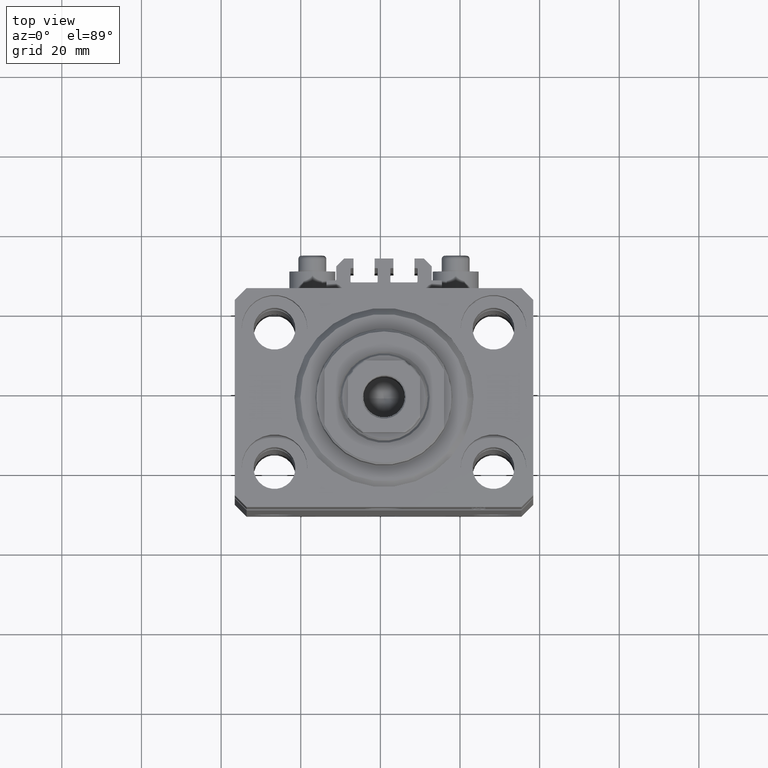
[diagram: clean part render]
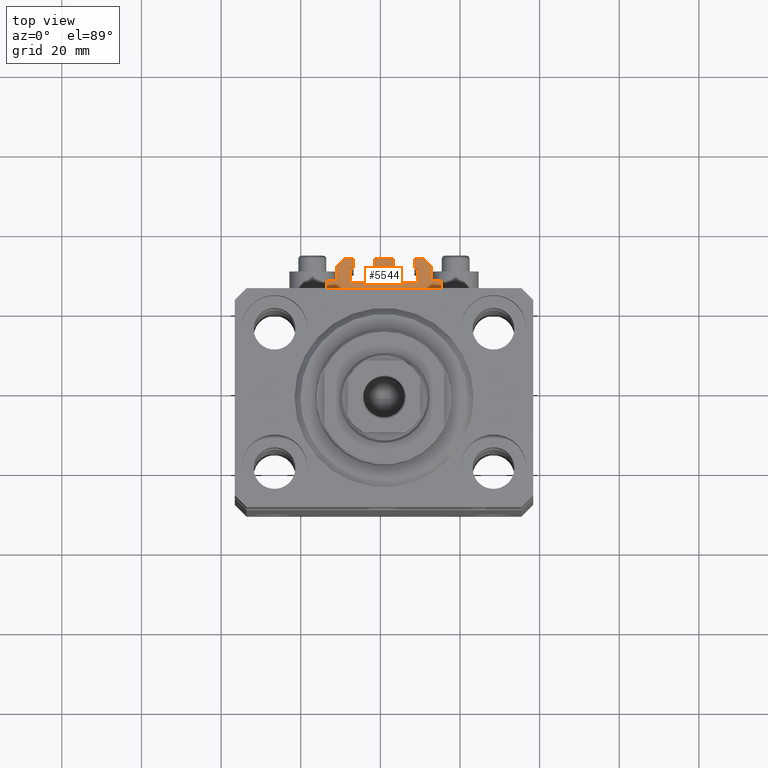
[diagram: same view with one face highlighted and labeled with its STEP entity id]
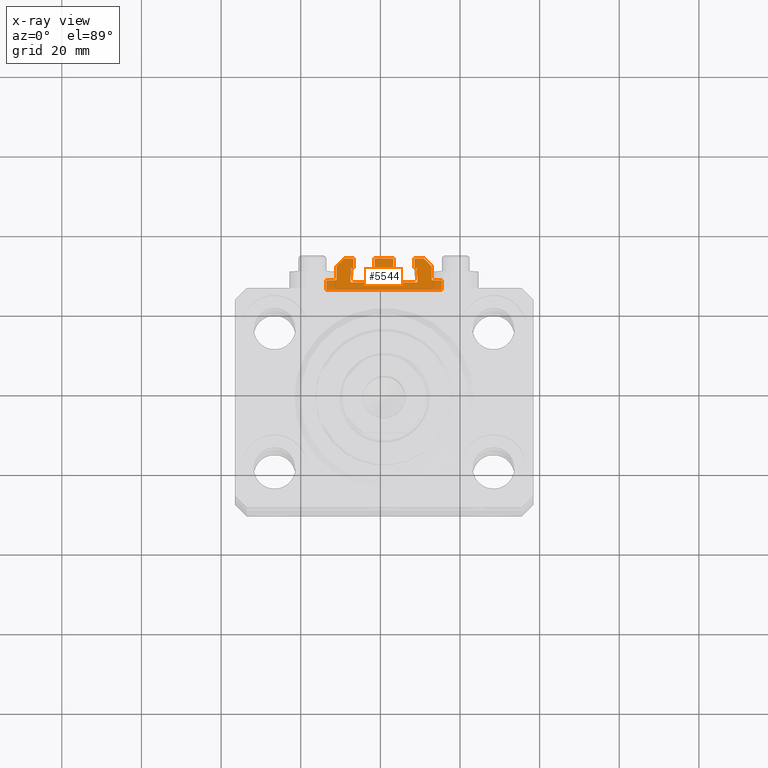
[diagram: x-ray of the same camera — body ghosted, the highlighted face saturated]
A machine part, top view. The second image highlights one B-rep face of the part: STEP entity #5544.
The next image is the same camera in x-ray: the body ghosted, the highlighted face saturated — about 12% of this face is hidden behind the body in this view.
In plain terms, the highlighted planar face has unit normal (0, 0, 1).
Its self-contained STEP definition (entity closure, byte-faithful):
#117 = CARTESIAN_POINT ( 'NONE',  ( -8.199999999999997513, 33.09999999999998721, -33.00000000000000000 ) ) ;
#260 = DIRECTION ( 'NONE',  ( -1.000000000000000000, 1.508455196501571429E-15, 0.000000000000000000 ) ) ;
#575 = CARTESIAN_POINT ( 'NONE',  ( -7.650000000000000355, 35.50000000000000000, -33.00000000000000000 ) ) ;
#585 = VECTOR ( 'NONE', #45507, 1000.000000000000000 ) ;
#744 = VECTOR ( 'NONE', #13806, 1000.000000000000000 ) ;
#787 = LINE ( 'NONE', #44879, #30733 ) ;
#840 = ORIENTED_EDGE ( 'NONE', *, *, #24301, .T. ) ;
#1160 = LINE ( 'NONE', #15941, #585 ) ;
#1259 = VECTOR ( 'NONE', #39230, 1000.000000000000000 ) ;
#1275 = CARTESIAN_POINT ( 'NONE',  ( -8.199999999999997513, 32.89999999999999147, -33.00000000000000000 ) ) ;
#1472 = VECTOR ( 'NONE', #19593, 1000.000000000000000 ) ;
#2055 = DIRECTION ( 'NONE',  ( 1.000000000000000000, 0.000000000000000000, 0.000000000000000000 ) ) ;
#2182 = ORIENTED_EDGE ( 'NONE', *, *, #19742, .F. ) ;
#2205 = LINE ( 'NONE', #12791, #1472 ) ;
#2235 = ORIENTED_EDGE ( 'NONE', *, *, #28502, .T. ) ;
#2301 = CARTESIAN_POINT ( 'NONE',  ( -8.399999999999996803, 29.69999999999999929, -33.00000000000000000 ) ) ;
#2357 = CARTESIAN_POINT ( 'NONE',  ( -1.600000000000000533, 32.90000000000001279, -33.00000000000000000 ) ) ;
#2511 = CARTESIAN_POINT ( 'NONE',  ( -12.20000000000000107, 29.99999999999998934, -33.00000000000000000 ) ) ;
#2898 = CARTESIAN_POINT ( 'NONE',  ( 8.400000000000000355, 29.70000000000000284, -33.00000000000000000 ) ) ;
#3105 = DIRECTION ( 'NONE',  ( 1.000000000000000000, 0.000000000000000000, 0.000000000000000000 ) ) ;
#3123 = CARTESIAN_POINT ( 'NONE',  ( 2.349999999999999645, 33.10000000000000853, -33.00000000000000000 ) ) ;
#3131 = CARTESIAN_POINT ( 'NONE',  ( 8.199999999999999289, 29.70000000000000284, -33.00000000000000000 ) ) ;
#3533 = CARTESIAN_POINT ( 'NONE',  ( -8.399999999999996803, 29.69999999999999929, -33.00000000000000000 ) ) ;
#3578 = CARTESIAN_POINT ( 'NONE',  ( -1.599999999999997868, 32.90000000000001279, -33.00000000000000000 ) ) ;
#3756 = VERTEX_POINT ( 'NONE', #8532 ) ;
#4057 = EDGE_CURVE ( 'NONE', #10342, #18408, #36883, .T. ) ;
#4443 = LINE ( 'NONE', #41035, #30674 ) ;
#4767 = EDGE_CURVE ( 'NONE', #3756, #34322, #26702, .T. ) ;
#4862 = DIRECTION ( 'NONE',  ( 0.000000000000000000, -1.000000000000000000, 0.000000000000000000 ) ) ;
#4902 = VERTEX_POINT ( 'NONE', #46577 ) ;
#5431 = AXIS2_PLACEMENT_3D ( 'NONE', #8521, #16009, #26928 ) ;
#5466 = EDGE_CURVE ( 'NONE', #12458, #47864, #9654, .T. ) ;
#5544 = ADVANCED_FACE ( 'NONE', ( #35824 ), #43084, .T. ) ;
#5845 = EDGE_CURVE ( 'NONE', #24451, #29112, #38929, .T. ) ;
#5973 = AXIS2_PLACEMENT_3D ( 'NONE', #1275, #41748, #38353 ) ;
#6147 = AXIS2_PLACEMENT_3D ( 'NONE', #37899, #12215, #45151 ) ;
#6232 = DIRECTION ( 'NONE',  ( -6.776263578034378061E-17, -1.000000000000000000, 0.000000000000000000 ) ) ;
#6244 = EDGE_CURVE ( 'NONE', #34628, #36381, #14346, .T. ) ;
#6276 = DIRECTION ( 'NONE',  ( 0.000000000000000000, 1.000000000000000000, 0.000000000000000000 ) ) ;
#6328 = CIRCLE ( 'NONE', #36495, 0.2000000000000031197 ) ;
#6609 = CARTESIAN_POINT ( 'NONE',  ( 12.00000000000000178, 30.20000000000002061, -33.00000000000000000 ) ) ;
#6828 = ORIENTED_EDGE ( 'NONE', *, *, #36456, .T. ) ;
#6946 = AXIS2_PLACEMENT_3D ( 'NONE', #28469, #39606, #2055 ) ;
#7175 = ORIENTED_EDGE ( 'NONE', *, *, #20879, .T. ) ;
#7270 = CARTESIAN_POINT ( 'NONE',  ( 14.49999999999999645, 27.50000000000000355, -33.00000000000000000 ) ) ;
#7559 = EDGE_CURVE ( 'NONE', #24451, #30896, #46867, .T. ) ;
#7672 = VECTOR ( 'NONE', #8911, 1000.000000000000000 ) ;
#7903 = DIRECTION ( 'NONE',  ( 1.000000000000000000, 0.000000000000000000, 0.000000000000000000 ) ) ;
#8106 = CARTESIAN_POINT ( 'NONE',  ( -1.800000000000000933, 29.69999999999999929, -33.00000000000000000 ) ) ;
#8177 = DIRECTION ( 'NONE',  ( -0.7071067811865474617, 0.7071067811865474617, 0.000000000000000000 ) ) ;
#8265 = ORIENTED_EDGE ( 'NONE', *, *, #43704, .F. ) ;
#8279 = VERTEX_POINT ( 'NONE', #7270 ) ;
#8521 = CARTESIAN_POINT ( 'NONE',  ( -12.20000000000000107, 30.19999999999999218, -33.00000000000000000 ) ) ;
#8532 = CARTESIAN_POINT ( 'NONE',  ( -1.800000000000000933, 29.50000000000000355, -33.00000000000000000 ) ) ;
#8540 = CIRCLE ( 'NONE', #5431, 0.2000000000000005107 ) ;
#8596 = ORIENTED_EDGE ( 'NONE', *, *, #43038, .T. ) ;
#8911 = DIRECTION ( 'NONE',  ( 0.000000000000000000, 1.000000000000000000, 0.000000000000000000 ) ) ;
#8970 = LINE ( 'NONE', #12611, #20810 ) ;
#9234 = VECTOR ( 'NONE', #24834, 1000.000000000000000 ) ;
#9654 = LINE ( 'NONE', #3123, #17416 ) ;
#10155 = VERTEX_POINT ( 'NONE', #18364 ) ;
#10206 = VERTEX_POINT ( 'NONE', #22970 ) ;
#10275 = CARTESIAN_POINT ( 'NONE',  ( -12.00000000000000000, 33.49999999999998579, -33.00000000000000000 ) ) ;
#10333 = LINE ( 'NONE', #2357, #15965 ) ;
#10342 = VERTEX_POINT ( 'NONE', #27787 ) ;
#10758 = LINE ( 'NONE', #10275, #33746 ) ;
#10782 = EDGE_CURVE ( 'NONE', #15866, #10206, #34653, .T. ) ;
#10867 = LINE ( 'NONE', #11100, #16145 ) ;
#11086 = EDGE_CURVE ( 'NONE', #22808, #24414, #37987, .T. ) ;
#11100 = CARTESIAN_POINT ( 'NONE',  ( 8.400000000000000355, 32.90000000000001990, -33.00000000000000000 ) ) ;
#11541 = CARTESIAN_POINT ( 'NONE',  ( 8.199999999999999289, 29.50000000000000711, -33.00000000000000000 ) ) ;
#11977 = EDGE_CURVE ( 'NONE', #19732, #36381, #24949, .T. ) ;
#12055 = CARTESIAN_POINT ( 'NONE',  ( 12.00000000000000000, 33.50000000000001421, -33.00000000000000000 ) ) ;
#12215 = DIRECTION ( 'NONE',  ( 0.000000000000000000, 0.000000000000000000, 1.000000000000000000 ) ) ;
#12222 = ORIENTED_EDGE ( 'NONE', *, *, #23487, .F. ) ;
#12254 = DIRECTION ( 'NONE',  ( 0.000000000000000000, 0.000000000000000000, 1.000000000000000000 ) ) ;
#12346 = CIRCLE ( 'NONE', #6946, 0.1999999999999987899 ) ;
#12458 = VERTEX_POINT ( 'NONE', #22923 ) ;
#12480 = EDGE_CURVE ( 'NONE', #28280, #29112, #38458, .T. ) ;
#12530 = CARTESIAN_POINT ( 'NONE',  ( -1.800000000000000933, 32.90000000000001279, -33.00000000000000000 ) ) ;
#12611 = CARTESIAN_POINT ( 'NONE',  ( -14.50000000000000000, 29.99999999999999289, -33.00000000000000000 ) ) ;
#12791 = CARTESIAN_POINT ( 'NONE',  ( -14.50000000000000000, 27.50000000000000355, -33.00000000000000000 ) ) ;
#12918 = VERTEX_POINT ( 'NONE', #34036 ) ;
#13025 = VERTEX_POINT ( 'NONE', #23139 ) ;
#13278 = DIRECTION ( 'NONE',  ( 0.000000000000000000, 0.000000000000000000, 1.000000000000000000 ) ) ;
#13416 = ORIENTED_EDGE ( 'NONE', *, *, #35933, .T. ) ;
#13686 = DIRECTION ( 'NONE',  ( -1.000000000000000000, -1.084202172485504828E-15, 0.000000000000000000 ) ) ;
#13710 = ORIENTED_EDGE ( 'NONE', *, *, #7559, .F. ) ;
#13806 = DIRECTION ( 'NONE',  ( 1.000000000000000000, -1.261617073437681085E-14, 0.000000000000000000 ) ) ;
#14252 = CARTESIAN_POINT ( 'NONE',  ( 12.20000000000000107, 30.20000000000002061, -33.00000000000000000 ) ) ;
#14267 = LINE ( 'NONE', #47443, #43282 ) ;
#14346 = CIRCLE ( 'NONE', #41419, 0.1999999999999970690 ) ;
#14390 = CARTESIAN_POINT ( 'NONE',  ( 14.49999999999999645, 30.00000000000002487, -33.00000000000000000 ) ) ;
#14570 = ORIENTED_EDGE ( 'NONE', *, *, #31730, .T. ) ;
#14603 = VERTEX_POINT ( 'NONE', #43576 ) ;
#14652 = VECTOR ( 'NONE', #13686, 1000.000000000000000 ) ;
#14862 = CARTESIAN_POINT ( 'NONE',  ( 8.200000000000001066, 33.10000000000000853, -33.00000000000000000 ) ) ;
#15127 = CIRCLE ( 'NONE', #42212, 0.1999999999999987899 ) ;
#15341 = ORIENTED_EDGE ( 'NONE', *, *, #20997, .T. ) ;
#15866 = VERTEX_POINT ( 'NONE', #31736 ) ;
#15941 = CARTESIAN_POINT ( 'NONE',  ( -8.199999999999997513, 33.09999999999998721, -33.00000000000000000 ) ) ;
#15965 = VECTOR ( 'NONE', #6232, 1000.000000000000000 ) ;
#16009 = DIRECTION ( 'NONE',  ( 0.000000000000000000, 0.000000000000000000, 1.000000000000000000 ) ) ;
#16014 = EDGE_CURVE ( 'NONE', #34628, #39025, #10867, .T. ) ;
#16145 = VECTOR ( 'NONE', #18140, 1000.000000000000000 ) ;
#16323 = ORIENTED_EDGE ( 'NONE', *, *, #18997, .T. ) ;
#16399 = DIRECTION ( 'NONE',  ( 0.000000000000000000, 0.000000000000000000, 1.000000000000000000 ) ) ;
#16411 = ORIENTED_EDGE ( 'NONE', *, *, #18111, .T. ) ;
#16726 = VECTOR ( 'NONE', #38045, 1000.000000000000227 ) ;
#16768 = ORIENTED_EDGE ( 'NONE', *, *, #11977, .T. ) ;
#17026 = ORIENTED_EDGE ( 'NONE', *, *, #38690, .F. ) ;
#17229 = ORIENTED_EDGE ( 'NONE', *, *, #36332, .T. ) ;
#17242 = ORIENTED_EDGE ( 'NONE', *, *, #4057, .T. ) ;
#17416 = VECTOR ( 'NONE', #6276, 1000.000000000000000 ) ;
#17627 = CARTESIAN_POINT ( 'NONE',  ( 1.599999999999999645, 29.69999999999999929, -33.00000000000000000 ) ) ;
#17659 = DIRECTION ( 'NONE',  ( 0.000000000000000000, 0.000000000000000000, 1.000000000000000000 ) ) ;
#17733 = ORIENTED_EDGE ( 'NONE', *, *, #5466, .T. ) ;
#17956 = VECTOR ( 'NONE', #45812, 1000.000000000000000 ) ;
#18111 = EDGE_CURVE ( 'NONE', #28760, #30896, #45919, .T. ) ;
#18140 = DIRECTION ( 'NONE',  ( -5.421010862427496532E-16, -1.000000000000000000, 0.000000000000000000 ) ) ;
#18190 = ORIENTED_EDGE ( 'NONE', *, *, #4767, .F. ) ;
#18233 = DIRECTION ( 'NONE',  ( 0.000000000000000000, 1.000000000000000000, 0.000000000000000000 ) ) ;
#18364 = CARTESIAN_POINT ( 'NONE',  ( -14.50000000000000000, 29.99999999999999289, -33.00000000000000000 ) ) ;
#18368 = EDGE_CURVE ( 'NONE', #39775, #45149, #19296, .T. ) ;
#18408 = VERTEX_POINT ( 'NONE', #575 ) ;
#18538 = DIRECTION ( 'NONE',  ( 1.000000000000000000, 0.000000000000000000, 0.000000000000000000 ) ) ;
#18620 = DIRECTION ( 'NONE',  ( -1.000000000000000000, 0.000000000000000000, 0.000000000000000000 ) ) ;
#18997 = EDGE_CURVE ( 'NONE', #28280, #12458, #28831, .T. ) ;
#19152 = VECTOR ( 'NONE', #30259, 1000.000000000000000 ) ;
#19229 = DIRECTION ( 'NONE',  ( -1.000000000000000000, 0.000000000000000000, 0.000000000000000000 ) ) ;
#19260 = DIRECTION ( 'NONE',  ( 1.000000000000000000, 0.000000000000000000, 0.000000000000000000 ) ) ;
#19296 = CIRCLE ( 'NONE', #6147, 0.1999999999999987899 ) ;
#19489 = ORIENTED_EDGE ( 'NONE', *, *, #23377, .F. ) ;
#19593 = DIRECTION ( 'NONE',  ( 1.000000000000000000, 0.000000000000000000, 0.000000000000000000 ) ) ;
#19732 = VERTEX_POINT ( 'NONE', #37115 ) ;
#19742 = EDGE_CURVE ( 'NONE', #23748, #14603, #8540, .T. ) ;
#19984 = ORIENTED_EDGE ( 'NONE', *, *, #42206, .T. ) ;
#20578 = CARTESIAN_POINT ( 'NONE',  ( 7.649999999999998579, 33.10000000000001563, -33.00000000000000000 ) ) ;
#20601 = AXIS2_PLACEMENT_3D ( 'NONE', #42597, #13278, #3105 ) ;
#20810 = VECTOR ( 'NONE', #4862, 1000.000000000000000 ) ;
#20879 = EDGE_CURVE ( 'NONE', #39775, #22808, #21642, .T. ) ;
#20997 = EDGE_CURVE ( 'NONE', #24414, #23252, #30337, .T. ) ;
#21394 = DIRECTION ( 'NONE',  ( -5.256737805990334897E-16, 1.000000000000000000, 0.000000000000000000 ) ) ;
#21642 = LINE ( 'NONE', #6609, #33420 ) ;
#21715 = LINE ( 'NONE', #21945, #27234 ) ;
#21856 = LINE ( 'NONE', #40726, #33089 ) ;
#21945 = CARTESIAN_POINT ( 'NONE',  ( -2.350000000000003642, 35.50000000000001421, -33.00000000000000000 ) ) ;
#22070 = ORIENTED_EDGE ( 'NONE', *, *, #6244, .F. ) ;
#22413 = ORIENTED_EDGE ( 'NONE', *, *, #46470, .T. ) ;
#22584 = CARTESIAN_POINT ( 'NONE',  ( 12.00000000000000178, 30.20000000000002061, -33.00000000000000000 ) ) ;
#22786 = DIRECTION ( 'NONE',  ( 0.000000000000000000, 0.000000000000000000, 1.000000000000000000 ) ) ;
#22808 = VERTEX_POINT ( 'NONE', #39393 ) ;
#22847 = DIRECTION ( 'NONE',  ( 0.000000000000000000, -1.000000000000000000, 0.000000000000000000 ) ) ;
#22923 = CARTESIAN_POINT ( 'NONE',  ( 2.349999999999999645, 33.10000000000000853, -33.00000000000000000 ) ) ;
#22970 = CARTESIAN_POINT ( 'NONE',  ( -12.00000000000000000, 33.49999999999998579, -33.00000000000000000 ) ) ;
#23139 = CARTESIAN_POINT ( 'NONE',  ( -1.800000000000000933, 33.10000000000001563, -33.00000000000000000 ) ) ;
#23252 = VERTEX_POINT ( 'NONE', #32191 ) ;
#23286 = VERTEX_POINT ( 'NONE', #3578 ) ;
#23377 = EDGE_CURVE ( 'NONE', #23286, #13025, #6328, .T. ) ;
#23487 = EDGE_CURVE ( 'NONE', #4902, #47864, #21715, .T. ) ;
#23570 = VERTEX_POINT ( 'NONE', #29688 ) ;
#23748 = VERTEX_POINT ( 'NONE', #2511 ) ;
#24301 = EDGE_CURVE ( 'NONE', #47858, #13025, #42823, .T. ) ;
#24414 = VERTEX_POINT ( 'NONE', #25380 ) ;
#24451 = VERTEX_POINT ( 'NONE', #17627 ) ;
#24503 = AXIS2_PLACEMENT_3D ( 'NONE', #45439, #12254, #7903 ) ;
#24834 = DIRECTION ( 'NONE',  ( 1.807003620809174632E-16, -1.000000000000000000, 0.000000000000000000 ) ) ;
#24949 = LINE ( 'NONE', #20578, #1259 ) ;
#25380 = CARTESIAN_POINT ( 'NONE',  ( 9.999999999999998224, 35.50000000000001421, -33.00000000000000000 ) ) ;
#25542 = DIRECTION ( 'NONE',  ( 0.000000000000000000, -1.000000000000000000, 0.000000000000000000 ) ) ;
#25897 = AXIS2_PLACEMENT_3D ( 'NONE', #8106, #37664, #19260 ) ;
#26539 = VERTEX_POINT ( 'NONE', #117 ) ;
#26702 = CIRCLE ( 'NONE', #25897, 0.1999999999999994282 ) ;
#26928 = DIRECTION ( 'NONE',  ( 1.000000000000000000, 0.000000000000000000, 0.000000000000000000 ) ) ;
#27234 = VECTOR ( 'NONE', #18538, 1000.000000000000000 ) ;
#27237 = ORIENTED_EDGE ( 'NONE', *, *, #38848, .T. ) ;
#27786 = CARTESIAN_POINT ( 'NONE',  ( 14.49999999999999645, 30.00000000000002487, -33.00000000000000000 ) ) ;
#27787 = CARTESIAN_POINT ( 'NONE',  ( -7.650000000000000355, 33.09999999999999432, -33.00000000000000000 ) ) ;
#27792 = VERTEX_POINT ( 'NONE', #40375 ) ;
#28019 = CARTESIAN_POINT ( 'NONE',  ( 1.600000000000000533, 29.69999999999999929, -33.00000000000000000 ) ) ;
#28248 = VECTOR ( 'NONE', #46883, 1000.000000000000000 ) ;
#28280 = VERTEX_POINT ( 'NONE', #31978 ) ;
#28469 = CARTESIAN_POINT ( 'NONE',  ( -8.199999999999997513, 29.69999999999999929, -33.00000000000000000 ) ) ;
#28502 = EDGE_CURVE ( 'NONE', #26539, #10342, #1160, .T. ) ;
#28760 = VERTEX_POINT ( 'NONE', #11541 ) ;
#28831 = LINE ( 'NONE', #46976, #744 ) ;
#29041 = DIRECTION ( 'NONE',  ( 1.000000000000000000, 0.000000000000000000, 0.000000000000000000 ) ) ;
#29112 = VERTEX_POINT ( 'NONE', #38370 ) ;
#29369 = ORIENTED_EDGE ( 'NONE', *, *, #39256, .T. ) ;
#29688 = CARTESIAN_POINT ( 'NONE',  ( -14.50000000000000000, 27.50000000000000355, -33.00000000000000000 ) ) ;
#30259 = DIRECTION ( 'NONE',  ( -1.084202172485505223E-15, 1.000000000000000000, 0.000000000000000000 ) ) ;
#30337 = LINE ( 'NONE', #41714, #17956 ) ;
#30674 = VECTOR ( 'NONE', #19229, 1000.000000000000000 ) ;
#30728 = CARTESIAN_POINT ( 'NONE',  ( 14.49999999999999645, 27.50000000000000355, -33.00000000000000000 ) ) ;
#30733 = VECTOR ( 'NONE', #22847, 1000.000000000000000 ) ;
#30896 = VERTEX_POINT ( 'NONE', #33268 ) ;
#30976 = LINE ( 'NONE', #30728, #7672 ) ;
#31194 = DIRECTION ( 'NONE',  ( -1.000000000000000000, 0.000000000000000000, 0.000000000000000000 ) ) ;
#31257 = CARTESIAN_POINT ( 'NONE',  ( -10.00000000000000000, 35.50000000000000000, -33.00000000000000000 ) ) ;
#31730 = EDGE_CURVE ( 'NONE', #23252, #19732, #787, .T. ) ;
#31736 = CARTESIAN_POINT ( 'NONE',  ( -10.00000000000000000, 35.50000000000000000, -33.00000000000000000 ) ) ;
#31978 = CARTESIAN_POINT ( 'NONE',  ( 1.800000000000000933, 33.10000000000001563, -33.00000000000000000 ) ) ;
#32191 = CARTESIAN_POINT ( 'NONE',  ( 7.649999999999998579, 35.50000000000001421, -33.00000000000000000 ) ) ;
#32195 = DIRECTION ( 'NONE',  ( 0.000000000000000000, 0.000000000000000000, 1.000000000000000000 ) ) ;
#32592 = CARTESIAN_POINT ( 'NONE',  ( -2.350000000000003197, 33.10000000000000853, -33.00000000000000000 ) ) ;
#33089 = VECTOR ( 'NONE', #260, 1000.000000000000000 ) ;
#33268 = CARTESIAN_POINT ( 'NONE',  ( 1.800000000000000933, 29.50000000000000000, -33.00000000000000000 ) ) ;
#33294 = LINE ( 'NONE', #36453, #9234 ) ;
#33420 = VECTOR ( 'NONE', #21394, 1000.000000000000000 ) ;
#33744 = VECTOR ( 'NONE', #8177, 1000.000000000000114 ) ;
#33746 = VECTOR ( 'NONE', #25542, 1000.000000000000000 ) ;
#33776 = ORIENTED_EDGE ( 'NONE', *, *, #35215, .F. ) ;
#34036 = CARTESIAN_POINT ( 'NONE',  ( -8.400000000000000355, 32.89999999999999858, -33.00000000000000000 ) ) ;
#34081 = EDGE_CURVE ( 'NONE', #42999, #45149, #45715, .T. ) ;
#34322 = VERTEX_POINT ( 'NONE', #36958 ) ;
#34628 = VERTEX_POINT ( 'NONE', #43928 ) ;
#34653 = LINE ( 'NONE', #31257, #16726 ) ;
#34827 = DIRECTION ( 'NONE',  ( 1.000000000000000000, 0.000000000000000000, 0.000000000000000000 ) ) ;
#35215 = EDGE_CURVE ( 'NONE', #28760, #39025, #15127, .T. ) ;
#35505 = CARTESIAN_POINT ( 'NONE',  ( 8.199999999999999289, 29.50000000000000711, -33.00000000000000000 ) ) ;
#35720 = ORIENTED_EDGE ( 'NONE', *, *, #12480, .F. ) ;
#35824 = FACE_OUTER_BOUND ( 'NONE', #39559, .T. ) ;
#35933 = EDGE_CURVE ( 'NONE', #23286, #34322, #10333, .T. ) ;
#36312 = DIRECTION ( 'NONE',  ( 1.000000000000000000, 0.000000000000000000, -0.000000000000000000 ) ) ;
#36332 = EDGE_CURVE ( 'NONE', #10206, #14603, #10758, .T. ) ;
#36381 = VERTEX_POINT ( 'NONE', #14862 ) ;
#36453 = CARTESIAN_POINT ( 'NONE',  ( -2.350000000000003642, 35.50000000000001421, -33.00000000000000000 ) ) ;
#36456 = EDGE_CURVE ( 'NONE', #18408, #15866, #4443, .T. ) ;
#36495 = AXIS2_PLACEMENT_3D ( 'NONE', #12530, #16399, #34827 ) ;
#36883 = LINE ( 'NONE', #40289, #40563 ) ;
#36927 = CIRCLE ( 'NONE', #5973, 0.2000000000000005107 ) ;
#36958 = CARTESIAN_POINT ( 'NONE',  ( -1.600000000000000755, 29.69999999999999929, -33.00000000000000000 ) ) ;
#37115 = CARTESIAN_POINT ( 'NONE',  ( 7.649999999999998579, 33.10000000000001563, -33.00000000000000000 ) ) ;
#37664 = DIRECTION ( 'NONE',  ( 0.000000000000000000, 0.000000000000000000, 1.000000000000000000 ) ) ;
#37899 = CARTESIAN_POINT ( 'NONE',  ( 12.20000000000000107, 30.20000000000002061, -33.00000000000000000 ) ) ;
#37987 = LINE ( 'NONE', #12055, #33744 ) ;
#38045 = DIRECTION ( 'NONE',  ( -0.7071067811865460184, -0.7071067811865490160, 0.000000000000000000 ) ) ;
#38052 = VECTOR ( 'NONE', #40160, 1000.000000000000000 ) ;
#38107 = VERTEX_POINT ( 'NONE', #3533 ) ;
#38353 = DIRECTION ( 'NONE',  ( 1.000000000000000000, 0.000000000000000000, 0.000000000000000000 ) ) ;
#38370 = CARTESIAN_POINT ( 'NONE',  ( 1.600000000000000533, 32.90000000000001279, -33.00000000000000000 ) ) ;
#38458 = CIRCLE ( 'NONE', #24503, 0.2000000000000033418 ) ;
#38690 = EDGE_CURVE ( 'NONE', #26539, #12918, #36927, .T. ) ;
#38776 = ORIENTED_EDGE ( 'NONE', *, *, #5845, .T. ) ;
#38848 = EDGE_CURVE ( 'NONE', #23748, #10155, #21856, .T. ) ;
#38896 = LINE ( 'NONE', #2301, #19152 ) ;
#38929 = LINE ( 'NONE', #28019, #28248 ) ;
#39023 = CARTESIAN_POINT ( 'NONE',  ( 12.20000000000000107, 30.00000000000002487, -33.00000000000000000 ) ) ;
#39025 = VERTEX_POINT ( 'NONE', #2898 ) ;
#39230 = DIRECTION ( 'NONE',  ( 1.000000000000000000, -1.261617073437673828E-14, 0.000000000000000000 ) ) ;
#39256 = EDGE_CURVE ( 'NONE', #38107, #12918, #38896, .T. ) ;
#39393 = CARTESIAN_POINT ( 'NONE',  ( 12.00000000000000000, 33.50000000000001421, -33.00000000000000000 ) ) ;
#39559 = EDGE_LOOP ( 'NONE', ( #19984, #46821, #42302, #39820, #41296, #7175, #39610, #15341, #14570, #16768, #22070, #42011, #33776, #16411, #13710, #38776, #35720, #16323, #17733, #12222, #8596, #840, #19489, #13416, #18190, #22413, #8265, #29369, #17026, #2235, #17242, #6828, #44951, #17229, #2182, #27237 ) ) ;
#39606 = DIRECTION ( 'NONE',  ( 0.000000000000000000, 0.000000000000000000, 1.000000000000000000 ) ) ;
#39610 = ORIENTED_EDGE ( 'NONE', *, *, #11086, .T. ) ;
#39775 = VERTEX_POINT ( 'NONE', #22584 ) ;
#39820 = ORIENTED_EDGE ( 'NONE', *, *, #34081, .T. ) ;
#40096 = VECTOR ( 'NONE', #31194, 1000.000000000000000 ) ;
#40160 = DIRECTION ( 'NONE',  ( 1.000000000000000000, 1.261617073437673039E-14, 0.000000000000000000 ) ) ;
#40289 = CARTESIAN_POINT ( 'NONE',  ( -7.650000000000000355, 33.09999999999999432, -33.00000000000000000 ) ) ;
#40375 = CARTESIAN_POINT ( 'NONE',  ( -8.199999999999997513, 29.50000000000000355, -33.00000000000000000 ) ) ;
#40563 = VECTOR ( 'NONE', #18233, 1000.000000000000000 ) ;
#40726 = CARTESIAN_POINT ( 'NONE',  ( -12.20000000000000107, 29.99999999999998934, -33.00000000000000000 ) ) ;
#40803 = CARTESIAN_POINT ( 'NONE',  ( 2.349999999999999645, 35.50000000000001421, -33.00000000000000000 ) ) ;
#41035 = CARTESIAN_POINT ( 'NONE',  ( -7.650000000000000355, 35.50000000000000000, -33.00000000000000000 ) ) ;
#41296 = ORIENTED_EDGE ( 'NONE', *, *, #18368, .F. ) ;
#41419 = AXIS2_PLACEMENT_3D ( 'NONE', #44101, #22786, #45056 ) ;
#41714 = CARTESIAN_POINT ( 'NONE',  ( 9.999999999999998224, 35.50000000000001421, -33.00000000000000000 ) ) ;
#41748 = DIRECTION ( 'NONE',  ( 0.000000000000000000, 0.000000000000000000, 1.000000000000000000 ) ) ;
#42011 = ORIENTED_EDGE ( 'NONE', *, *, #16014, .T. ) ;
#42184 = AXIS2_PLACEMENT_3D ( 'NONE', #14252, #32195, #36312 ) ;
#42206 = EDGE_CURVE ( 'NONE', #10155, #23570, #8970, .T. ) ;
#42212 = AXIS2_PLACEMENT_3D ( 'NONE', #3131, #17659, #29041 ) ;
#42302 = ORIENTED_EDGE ( 'NONE', *, *, #42502, .T. ) ;
#42502 = EDGE_CURVE ( 'NONE', #8279, #42999, #30976, .T. ) ;
#42597 = CARTESIAN_POINT ( 'NONE',  ( 1.800000000000000933, 29.69999999999999929, -33.00000000000000000 ) ) ;
#42823 = LINE ( 'NONE', #43314, #38052 ) ;
#42999 = VERTEX_POINT ( 'NONE', #14390 ) ;
#43038 = EDGE_CURVE ( 'NONE', #4902, #47858, #33294, .T. ) ;
#43084 = PLANE ( 'NONE',  #42184 ) ;
#43282 = VECTOR ( 'NONE', #18620, 1000.000000000000000 ) ;
#43314 = CARTESIAN_POINT ( 'NONE',  ( -2.350000000000003197, 33.10000000000000853, -33.00000000000000000 ) ) ;
#43576 = CARTESIAN_POINT ( 'NONE',  ( -12.00000000000000000, 30.19999999999999218, -33.00000000000000000 ) ) ;
#43704 = EDGE_CURVE ( 'NONE', #38107, #27792, #12346, .T. ) ;
#43928 = CARTESIAN_POINT ( 'NONE',  ( 8.399999999999998579, 32.90000000000001990, -33.00000000000000000 ) ) ;
#44101 = CARTESIAN_POINT ( 'NONE',  ( 8.200000000000001066, 32.90000000000001990, -33.00000000000000000 ) ) ;
#44879 = CARTESIAN_POINT ( 'NONE',  ( 7.649999999999998579, 35.50000000000001421, -33.00000000000000000 ) ) ;
#44951 = ORIENTED_EDGE ( 'NONE', *, *, #10782, .T. ) ;
#45056 = DIRECTION ( 'NONE',  ( 1.000000000000000000, 0.000000000000000000, 0.000000000000000000 ) ) ;
#45149 = VERTEX_POINT ( 'NONE', #39023 ) ;
#45151 = DIRECTION ( 'NONE',  ( 1.000000000000000000, 0.000000000000000000, 0.000000000000000000 ) ) ;
#45439 = CARTESIAN_POINT ( 'NONE',  ( 1.800000000000000933, 32.90000000000001279, -33.00000000000000000 ) ) ;
#45507 = DIRECTION ( 'NONE',  ( 1.000000000000000000, 1.261617073437685503E-14, 0.000000000000000000 ) ) ;
#45715 = LINE ( 'NONE', #27786, #40096 ) ;
#45812 = DIRECTION ( 'NONE',  ( -1.000000000000000000, 0.000000000000000000, 0.000000000000000000 ) ) ;
#45919 = LINE ( 'NONE', #35505, #14652 ) ;
#45937 = EDGE_CURVE ( 'NONE', #23570, #8279, #2205, .T. ) ;
#46470 = EDGE_CURVE ( 'NONE', #3756, #27792, #14267, .T. ) ;
#46577 = CARTESIAN_POINT ( 'NONE',  ( -2.350000000000003642, 35.50000000000001421, -33.00000000000000000 ) ) ;
#46821 = ORIENTED_EDGE ( 'NONE', *, *, #45937, .T. ) ;
#46867 = CIRCLE ( 'NONE', #20601, 0.2000000000000016209 ) ;
#46883 = DIRECTION ( 'NONE',  ( 0.000000000000000000, 1.000000000000000000, 0.000000000000000000 ) ) ;
#46976 = CARTESIAN_POINT ( 'NONE',  ( 1.800000000000000933, 33.10000000000001563, -33.00000000000000000 ) ) ;
#47443 = CARTESIAN_POINT ( 'NONE',  ( -1.800000000000000933, 29.50000000000000355, -33.00000000000000000 ) ) ;
#47858 = VERTEX_POINT ( 'NONE', #32592 ) ;
#47864 = VERTEX_POINT ( 'NONE', #40803 ) ;